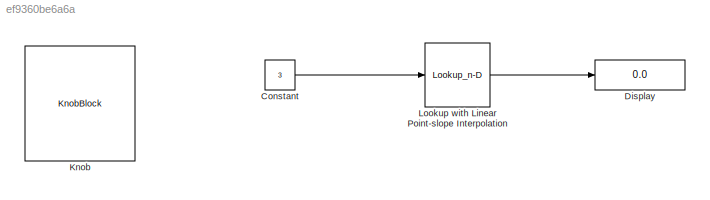
MODEL slx_ef9360be6a6a
KIND model
CONFIG AbsTol = auto
CONFIG EnableMultiTasking = off
CONFIG FixedStep = auto
CONFIG MaxStep = auto
CONFIG MinStep = auto
CONFIG RelTol = 1e-3
CONFIG SampleTimeConstraint = Unconstrained
CONFIG SolverName = VariableStepAuto
CONFIG StartTime = 0.0
CONFIG StopTime = inf
BLOCK [Constant] Constant
  Value = 3
BLOCK [Display] Display
  Decimation = 1
BLOCK [KnobBlock] Knob
  ScaleMax = 5
  ScaleMin = 1
  TickInterval = 1
BLOCK [Lookup_n-D] Lookup with Linear Point-slope Interpolation
  BreakpointsForDimension1 = [1,2,3,4,5]
  InputPortMap = u0
  InternalRulePriority = Speed
  NumberOfTableDimensions = 1
  RndMeth = Simplest
  Table = [100,200,300,400,500]
LINE Constant:1 -> Lookup with Linear Point-slope Interpolation:1
LINE Lookup with Linear Point-slope Interpolation:1 -> Display:1
